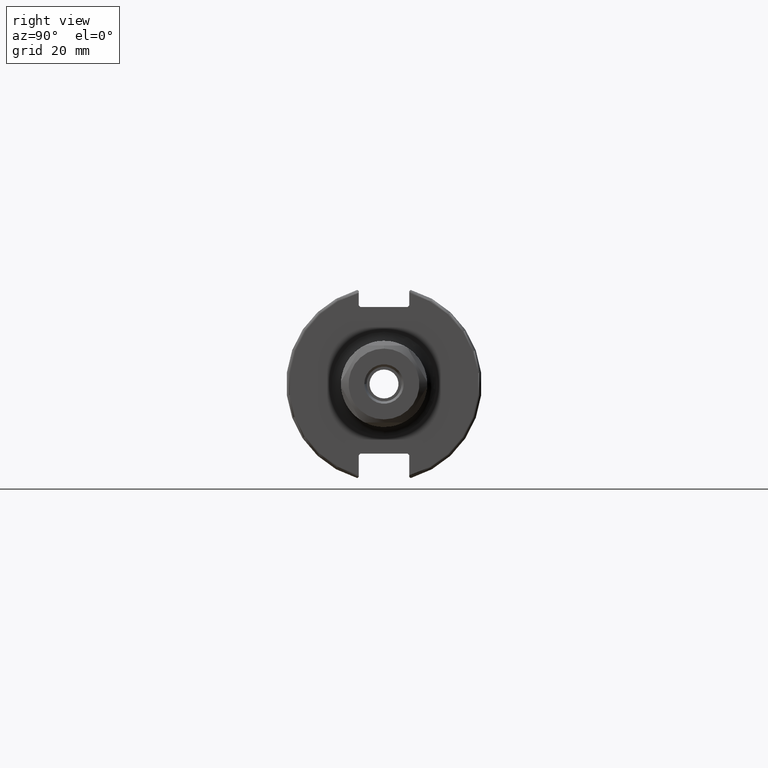
[diagram: clean part render]
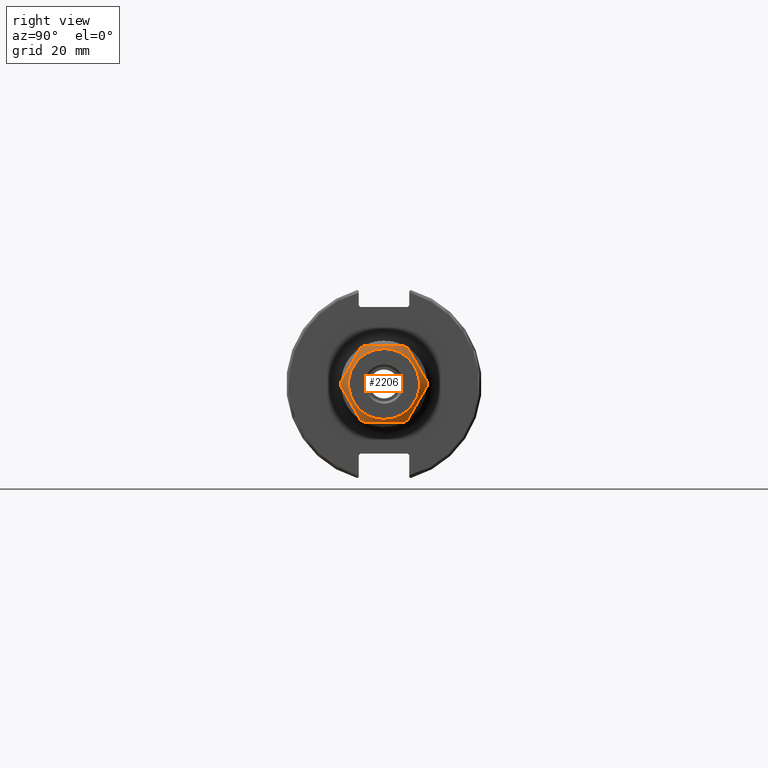
[diagram: same view with one face highlighted and labeled with its STEP entity id]
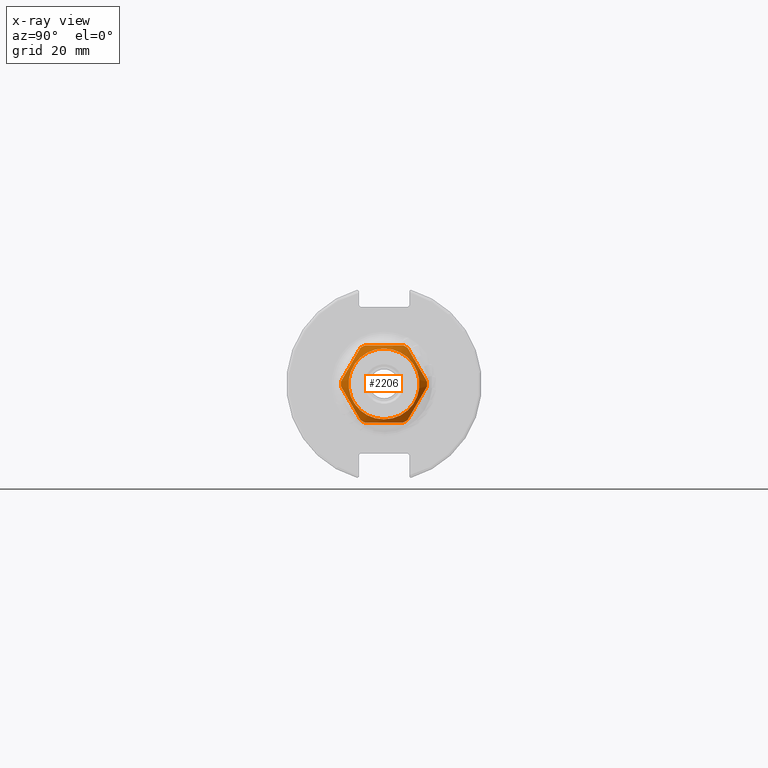
[diagram: x-ray of the same camera — body ghosted, the highlighted face saturated]
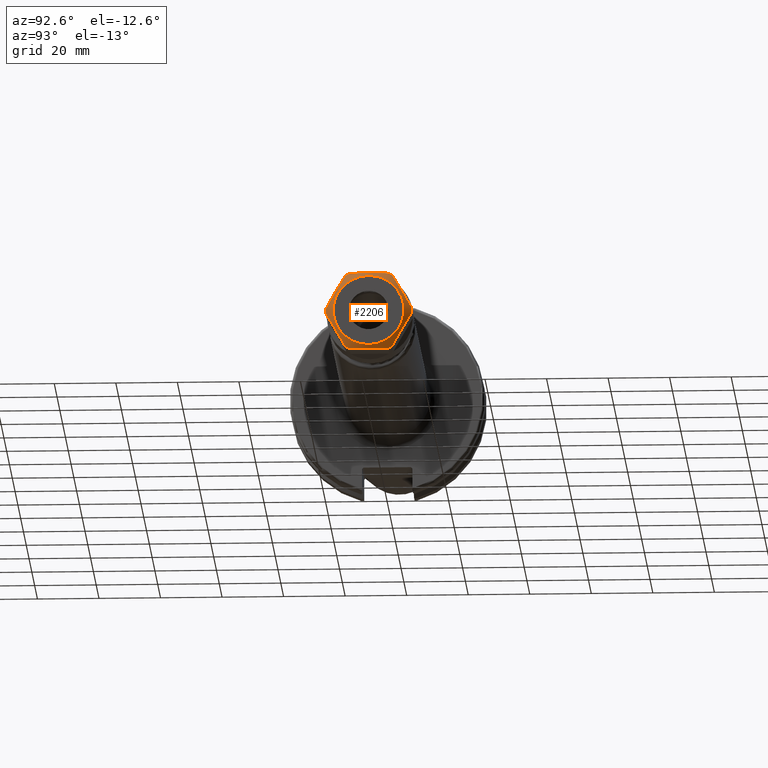
[diagram: same view with one face highlighted and labeled with its STEP entity id]
A machine part, right view. The second image highlights one B-rep face of the part: STEP entity #2206.
The next image is the same camera in x-ray: the body ghosted, the highlighted face saturated — about 0% of this face is hidden behind the body in this view.
A second angle (auxiliary view) of the same face is appended — the face is thin or edge-on in the first view.
In plain terms, the highlighted conical surface has half-angle 60 deg.
Its self-contained STEP definition (entity closure, byte-faithful):
#81=(
BOUNDED_CURVE()
B_SPLINE_CURVE(2,(#4090,#4091,#4092),.UNSPECIFIED.,.F.,.F.)
B_SPLINE_CURVE_WITH_KNOTS((3,3),(1.76676018698455,2.8268759330768),
 .UNSPECIFIED.)
CURVE()
GEOMETRIC_REPRESENTATION_ITEM()
RATIONAL_B_SPLINE_CURVE((1.5788725780361,1.67360493271826,1.67360493271826))
REPRESENTATION_ITEM('')
);
#82=(
BOUNDED_CURVE()
B_SPLINE_CURVE(2,(#4096,#4097,#4098),.UNSPECIFIED.,.F.,.F.)
B_SPLINE_CURVE_WITH_KNOTS((3,3),(1.76676018698417,3.88699167916846),
 .UNSPECIFIED.)
CURVE()
GEOMETRIC_REPRESENTATION_ITEM()
RATIONAL_B_SPLINE_CURVE((1.57887257803575,1.76833728739999,1.57887257803583))
REPRESENTATION_ITEM('')
);
#83=(
BOUNDED_CURVE()
B_SPLINE_CURVE(2,(#4102,#4103,#4104),.UNSPECIFIED.,.F.,.F.)
B_SPLINE_CURVE_WITH_KNOTS((3,3),(1.76676018698458,3.88699167916981),
 .UNSPECIFIED.)
CURVE()
GEOMETRIC_REPRESENTATION_ITEM()
RATIONAL_B_SPLINE_CURVE((1.57887257803629,1.76833728740072,1.5788725780362))
REPRESENTATION_ITEM('')
);
#84=(
BOUNDED_CURVE()
B_SPLINE_CURVE(2,(#4108,#4109,#4110),.UNSPECIFIED.,.F.,.F.)
B_SPLINE_CURVE_WITH_KNOTS((3,3),(-3.88699167916905,-1.76676018698455),
 .UNSPECIFIED.)
CURVE()
GEOMETRIC_REPRESENTATION_ITEM()
RATIONAL_B_SPLINE_CURVE((1.5788725780361,1.76833728740041,1.5788725780361))
REPRESENTATION_ITEM('')
);
#85=(
BOUNDED_CURVE()
B_SPLINE_CURVE(2,(#4114,#4115,#4116),.UNSPECIFIED.,.F.,.F.)
B_SPLINE_CURVE_WITH_KNOTS((3,3),(1.76676018698417,3.88699167916846),
 .UNSPECIFIED.)
CURVE()
GEOMETRIC_REPRESENTATION_ITEM()
RATIONAL_B_SPLINE_CURVE((1.57887257803575,1.76833728739999,1.57887257803583))
REPRESENTATION_ITEM('')
);
#86=(
BOUNDED_CURVE()
B_SPLINE_CURVE(2,(#4120,#4121,#4122),.UNSPECIFIED.,.F.,.F.)
B_SPLINE_CURVE_WITH_KNOTS((3,3),(1.76676018698458,3.88699167916981),
 .UNSPECIFIED.)
CURVE()
GEOMETRIC_REPRESENTATION_ITEM()
RATIONAL_B_SPLINE_CURVE((1.57887257803629,1.76833728740072,1.5788725780362))
REPRESENTATION_ITEM('')
);
#87=(
BOUNDED_CURVE()
B_SPLINE_CURVE(2,(#4125,#4126,#4127),.UNSPECIFIED.,.F.,.F.)
B_SPLINE_CURVE_WITH_KNOTS((3,3),(2.8268759330768,3.88699167916905),
 .UNSPECIFIED.)
CURVE()
GEOMETRIC_REPRESENTATION_ITEM()
RATIONAL_B_SPLINE_CURVE((1.67360493271826,1.67360493271826,1.5788725780361))
REPRESENTATION_ITEM('')
);
#376=FACE_OUTER_BOUND('',#521,.T.);
#521=EDGE_LOOP('',(#1990,#1991,#1992,#1993,#1994,#1995,#1996,#1997,#1998,
#1999,#2000,#2001,#2002,#2003,#2004,#2005));
#647=LINE('',#4128,#779);
#779=VECTOR('',#3140,12.74999999999);
#901=CIRCLE('',#2523,11.5);
#902=CIRCLE('',#2525,14.);
#903=CIRCLE('',#2526,14.);
#904=CIRCLE('',#2527,14.);
#905=CIRCLE('',#2528,14.);
#906=CIRCLE('',#2529,14.);
#907=CIRCLE('',#2530,14.);
#1092=VERTEX_POINT('',#4085);
#1093=VERTEX_POINT('',#4088);
#1094=VERTEX_POINT('',#4089);
#1095=VERTEX_POINT('',#4093);
#1096=VERTEX_POINT('',#4095);
#1097=VERTEX_POINT('',#4099);
#1098=VERTEX_POINT('',#4101);
#1099=VERTEX_POINT('',#4105);
#1100=VERTEX_POINT('',#4107);
#1101=VERTEX_POINT('',#4111);
#1102=VERTEX_POINT('',#4113);
#1103=VERTEX_POINT('',#4117);
#1104=VERTEX_POINT('',#4119);
#1105=VERTEX_POINT('',#4123);
#1396=EDGE_CURVE('',#1092,#1092,#901,.T.);
#1397=EDGE_CURVE('',#1093,#1094,#81,.T.);
#1398=EDGE_CURVE('',#1093,#1095,#902,.T.);
#1399=EDGE_CURVE('',#1096,#1095,#82,.T.);
#1400=EDGE_CURVE('',#1096,#1097,#903,.T.);
#1401=EDGE_CURVE('',#1098,#1097,#83,.T.);
#1402=EDGE_CURVE('',#1098,#1099,#904,.T.);
#1403=EDGE_CURVE('',#1100,#1099,#84,.F.);
#1404=EDGE_CURVE('',#1100,#1101,#905,.T.);
#1405=EDGE_CURVE('',#1102,#1101,#85,.T.);
#1406=EDGE_CURVE('',#1102,#1103,#906,.T.);
#1407=EDGE_CURVE('',#1104,#1103,#86,.T.);
#1408=EDGE_CURVE('',#1104,#1105,#907,.T.);
#1409=EDGE_CURVE('',#1094,#1105,#87,.T.);
#1410=EDGE_CURVE('',#1094,#1092,#647,.T.);
#1990=ORIENTED_EDGE('',*,*,#1397,.F.);
#1991=ORIENTED_EDGE('',*,*,#1398,.T.);
#1992=ORIENTED_EDGE('',*,*,#1399,.F.);
#1993=ORIENTED_EDGE('',*,*,#1400,.T.);
#1994=ORIENTED_EDGE('',*,*,#1401,.F.);
#1995=ORIENTED_EDGE('',*,*,#1402,.T.);
#1996=ORIENTED_EDGE('',*,*,#1403,.F.);
#1997=ORIENTED_EDGE('',*,*,#1404,.T.);
#1998=ORIENTED_EDGE('',*,*,#1405,.F.);
#1999=ORIENTED_EDGE('',*,*,#1406,.T.);
#2000=ORIENTED_EDGE('',*,*,#1407,.F.);
#2001=ORIENTED_EDGE('',*,*,#1408,.T.);
#2002=ORIENTED_EDGE('',*,*,#1409,.F.);
#2003=ORIENTED_EDGE('',*,*,#1410,.T.);
#2004=ORIENTED_EDGE('',*,*,#1396,.F.);
#2005=ORIENTED_EDGE('',*,*,#1410,.F.);
#2097=CONICAL_SURFACE('',#2524,12.74999999999,1.0471975511966);
#2206=ADVANCED_FACE('',(#376),#2097,.T.);
#2523=AXIS2_PLACEMENT_3D('',#4086,#3124,#3125);
#2524=AXIS2_PLACEMENT_3D('',#4087,#3126,#3127);
#2525=AXIS2_PLACEMENT_3D('',#4094,#3128,#3129);
#2526=AXIS2_PLACEMENT_3D('',#4100,#3130,#3131);
#2527=AXIS2_PLACEMENT_3D('',#4106,#3132,#3133);
#2528=AXIS2_PLACEMENT_3D('',#4112,#3134,#3135);
#2529=AXIS2_PLACEMENT_3D('',#4118,#3136,#3137);
#2530=AXIS2_PLACEMENT_3D('',#4124,#3138,#3139);
#3124=DIRECTION('center_axis',(1.,0.,0.));
#3125=DIRECTION('ref_axis',(0.,0.,1.));
#3126=DIRECTION('center_axis',(-1.,0.,0.));
#3127=DIRECTION('ref_axis',(0.,0.,-1.));
#3128=DIRECTION('center_axis',(1.,0.,0.));
#3129=DIRECTION('ref_axis',(0.,-0.450340007604224,0.892857142857147));
#3130=DIRECTION('center_axis',(1.,0.,0.));
#3131=DIRECTION('ref_axis',(0.,-0.998406971466793,0.0564226845028296));
#3132=DIRECTION('center_axis',(1.,0.,0.));
#3133=DIRECTION('ref_axis',(0.,-0.548066963862595,-0.836434458354292));
#3134=DIRECTION('center_axis',(1.,0.,0.));
#3135=DIRECTION('ref_axis',(0.,0.450340007604224,-0.892857142857147));
#3136=DIRECTION('center_axis',(1.,0.,0.));
#3137=DIRECTION('ref_axis',(0.,0.998406971466793,-0.0564226845028296));
#3138=DIRECTION('center_axis',(1.,0.,0.));
#3139=DIRECTION('ref_axis',(0.,0.548066963862595,0.836434458354292));
#3140=DIRECTION('',(0.5,-1.06057523872491E-16,-0.866025403784439));
#4085=CARTESIAN_POINT('',(8.75,0.,11.5));
#4086=CARTESIAN_POINT('Origin',(8.75,0.,0.));
#4087=CARTESIAN_POINT('Origin',(8.028312163517,0.,0.));
#4088=CARTESIAN_POINT('',(7.306624327026,-6.304760106459,12.5));
#4089=CARTESIAN_POINT('',(8.17264973080863,7.65404249467096E-16,12.5));
#4090=CARTESIAN_POINT('Ctrl Pts',(7.30662432702432,-6.30476010645877,12.5));
#4091=CARTESIAN_POINT('Ctrl Pts',(8.17264973080863,-2.97394344644284,12.5));
#4092=CARTESIAN_POINT('Ctrl Pts',(8.17264973080863,0.,12.5));
#4093=CARTESIAN_POINT('',(7.306624327026,-7.672937494076,11.71008241696));
#4094=CARTESIAN_POINT('Origin',(7.306624327026,0.,0.));
#4095=CARTESIAN_POINT('',(7.306624327026,-13.97769760054,0.7899175830396));
#4096=CARTESIAN_POINT('Ctrl Pts',(7.30662432702171,-13.9776976005394,0.789917583040281));
#4097=CARTESIAN_POINT('Ctrl Pts',(8.94588669847094,-10.8253175473094,6.25000000000109));
#4098=CARTESIAN_POINT('Ctrl Pts',(7.30662432702252,-7.67293749407968,11.7100824169614));
#4099=CARTESIAN_POINT('',(7.306624327026,-13.97769760054,-0.7899175830396));
#4100=CARTESIAN_POINT('Origin',(7.306624327026,0.,0.));
#4101=CARTESIAN_POINT('',(7.306624327026,-7.672937494076,-11.71008241696));
#4102=CARTESIAN_POINT('Ctrl Pts',(7.30662432702559,-7.67293749407382,-11.7100824169588));
#4103=CARTESIAN_POINT('Ctrl Pts',(8.94588669847502,-10.8253175473039,-6.24999999999791));
#4104=CARTESIAN_POINT('Ctrl Pts',(7.30662432702476,-13.9776976005343,-0.789917583036417));
#4105=CARTESIAN_POINT('',(7.306624327026,-6.304760106459,-12.5));
#4106=CARTESIAN_POINT('Origin',(7.306624327026,0.,0.));
#4107=CARTESIAN_POINT('',(7.306624327026,6.304760106459,-12.5));
#4108=CARTESIAN_POINT('Ctrl Pts',(7.30662432702432,-6.30476010645876,-12.5));
#4109=CARTESIAN_POINT('Ctrl Pts',(8.94588669847321,3.5527136788005E-15,
-12.5));
#4110=CARTESIAN_POINT('Ctrl Pts',(7.30662432702432,6.30476010645877,-12.5));
#4111=CARTESIAN_POINT('',(7.306624327026,7.672937494076,-11.71008241696));
#4112=CARTESIAN_POINT('Origin',(7.306624327026,0.,0.));
#4113=CARTESIAN_POINT('',(7.306624327026,13.97769760054,-0.7899175830396));
#4114=CARTESIAN_POINT('Ctrl Pts',(7.30662432702171,13.9776976005394,-0.789917583040281));
#4115=CARTESIAN_POINT('Ctrl Pts',(8.94588669847094,10.8253175473094,-6.25000000000109));
#4116=CARTESIAN_POINT('Ctrl Pts',(7.30662432702252,7.67293749407968,-11.7100824169614));
#4117=CARTESIAN_POINT('',(7.306624327026,13.97769760054,0.7899175830396));
#4118=CARTESIAN_POINT('Origin',(7.306624327026,0.,0.));
#4119=CARTESIAN_POINT('',(7.306624327026,7.672937494076,11.71008241696));
#4120=CARTESIAN_POINT('Ctrl Pts',(7.30662432702559,7.67293749407382,11.7100824169588));
#4121=CARTESIAN_POINT('Ctrl Pts',(8.94588669847502,10.8253175473039,6.24999999999791));
#4122=CARTESIAN_POINT('Ctrl Pts',(7.30662432702476,13.9776976005343,0.789917583036417));
#4123=CARTESIAN_POINT('',(7.306624327026,6.304760106459,12.5));
#4124=CARTESIAN_POINT('Origin',(7.306624327026,0.,0.));
#4125=CARTESIAN_POINT('Ctrl Pts',(8.17264973080863,0.,12.5));
#4126=CARTESIAN_POINT('Ctrl Pts',(8.17264973080863,2.97394344644284,12.5));
#4127=CARTESIAN_POINT('Ctrl Pts',(7.30662432702432,6.30476010645876,12.5));
#4128=CARTESIAN_POINT('',(8.028312163517,1.56142466891165E-15,12.74999999999));